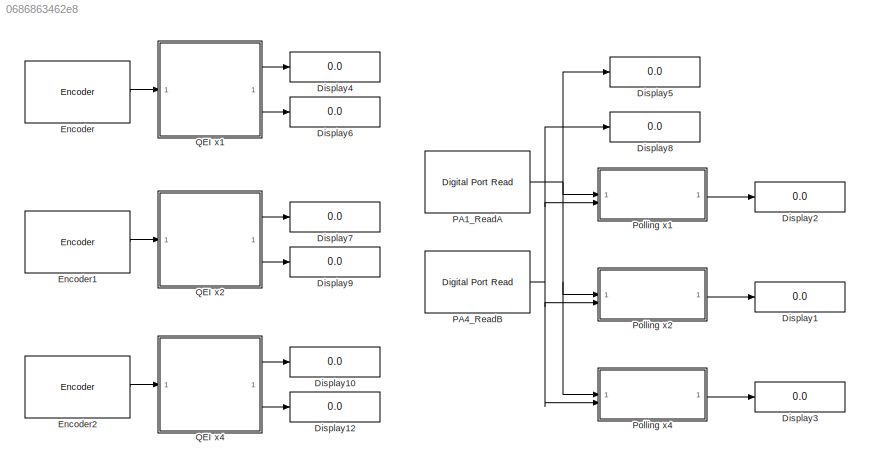
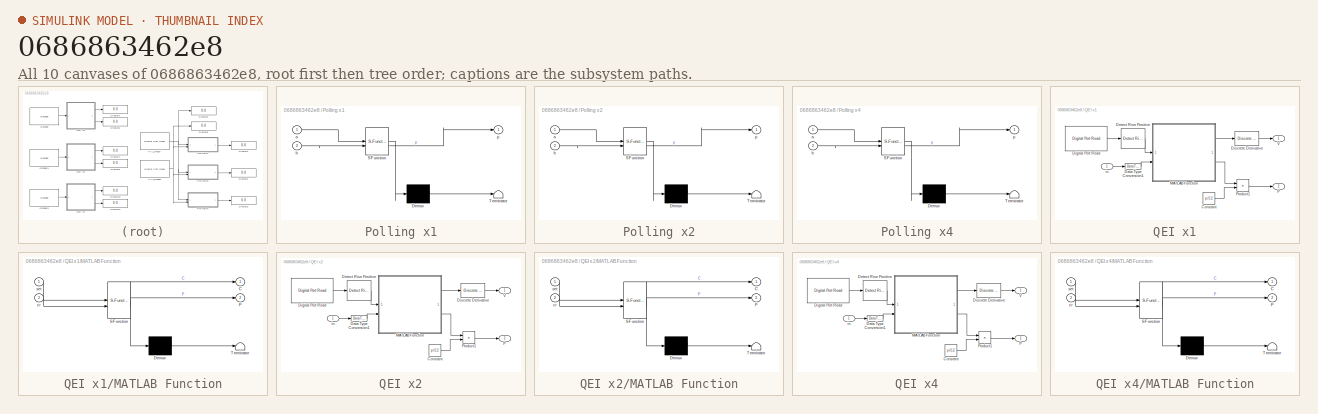
[diagram: thumbnail index - all 10 canvases of the model, root first then tree order]
MODEL slx_0686863462e8
KIND model
CONFIG AbsTol = auto
CONFIG EnableMultiTasking = on
CONFIG FixedStep = 0.01
CONFIG MaxStep = auto
CONFIG MinStep = auto
CONFIG RelTol = 1e-3
CONFIG SampleTimeConstraint = Unconstrained
CONFIG SolverName = FixedStepAuto
CONFIG StartTime = 0.0
CONFIG StopTime = inf
BLOCK [Display] Display1
  Decimation = 1
BLOCK [Display] Display10
  Decimation = 1
BLOCK [Display] Display12
  Decimation = 1
BLOCK [Display] Display2
  Decimation = 1
BLOCK [Display] Display3
  Decimation = 1
BLOCK [Display] Display4
  Decimation = 1
BLOCK [Display] Display5
  Decimation = 1
BLOCK [Display] Display6
  Decimation = 1
BLOCK [Display] Display7
  Decimation = 1
BLOCK [Display] Display8
  Decimation = 1
BLOCK [Display] Display9
  Decimation = 1
BLOCK [Reference] Encoder  REF=stm32g4xxblockslib/Encoder
  SourceBlock = stm32g4xxblockslib/Encoder
  SourceType = stm32cube.blocks.EncoderBlockForG4
BLOCK [Reference] Encoder1  REF=stm32g4xxblockslib/Encoder
  SourceBlock = stm32g4xxblockslib/Encoder
  SourceType = stm32cube.blocks.EncoderBlockForG4
BLOCK [Reference] Encoder2  REF=stm32g4xxblockslib/Encoder
  SourceBlock = stm32g4xxblockslib/Encoder
  SourceType = stm32cube.blocks.EncoderBlockForG4
BLOCK [Reference] PA1_ReadA  REF=stm32f4xxblockslib/Digital Port Read
  LibrarySourceBlock = stm32g4xxblockslib/Digital Port Read
  SourceBlock = stm32f4xxblockslib/Digital Port Read
  SourceType = stm32cube.blocks.DigitalPortRead
BLOCK [Reference] PA4_ReadB  REF=stm32f4xxblockslib/Digital Port Read
  LibrarySourceBlock = stm32g4xxblockslib/Digital Port Read
  SourceBlock = stm32f4xxblockslib/Digital Port Read
  SourceType = stm32cube.blocks.DigitalPortRead
BLOCK [SubSystem] Polling x1
  ErrorFcn = Stateflow.Translate.translate
  PermitHierarchicalResolution = ExplicitOnly
  SFBlockType = MATLAB Function
  TreatAsAtomicUnit = on
BLOCK [Demux] Polling x1/ Demux 
  Outputs = 1
BLOCK [S-Function] Polling x1/ SFunction 
  EnableBusSupport = on
  FunctionName = sf_sfun
  PortCounts = [2 2]
  SFcnIsStateOwnerBlock = off
  SFunctionDeploymentMode = off
  Tag = Stateflow S-Function 2
BLOCK [Terminator] Polling x1/ Terminator 
BLOCK [Inport] Polling x1/a
BLOCK [Inport] Polling x1/b
  Port = 2
BLOCK [Outport] Polling x1/p
BLOCK [SubSystem] Polling x2
  ErrorFcn = Stateflow.Translate.translate
  PermitHierarchicalResolution = ExplicitOnly
  SFBlockType = MATLAB Function
  TreatAsAtomicUnit = on
BLOCK [Demux] Polling x2/ Demux 
  Outputs = 1
BLOCK [S-Function] Polling x2/ SFunction 
  EnableBusSupport = on
  FunctionName = sf_sfun
  PortCounts = [2 2]
  SFcnIsStateOwnerBlock = off
  SFunctionDeploymentMode = off
  Tag = Stateflow S-Function 1
BLOCK [Terminator] Polling x2/ Terminator 
BLOCK [Inport] Polling x2/a
BLOCK [Inport] Polling x2/b
  Port = 2
BLOCK [Outport] Polling x2/p
BLOCK [SubSystem] Polling x4
  ErrorFcn = Stateflow.Translate.translate
  PermitHierarchicalResolution = ExplicitOnly
  SFBlockType = MATLAB Function
  TreatAsAtomicUnit = on
BLOCK [Demux] Polling x4/ Demux 
  Outputs = 1
BLOCK [S-Function] Polling x4/ SFunction 
  EnableBusSupport = on
  FunctionName = sf_sfun
  PortCounts = [2 2]
  SFcnIsStateOwnerBlock = off
  SFunctionDeploymentMode = off
  Tag = Stateflow S-Function 3
BLOCK [Terminator] Polling x4/ Terminator 
BLOCK [Inport] Polling x4/a
BLOCK [Inport] Polling x4/b
  Port = 2
BLOCK [Outport] Polling x4/p
BLOCK [SubSystem] QEI x1
BLOCK [Constant] QEI x1/Constant
  Value = pi/12
BLOCK [DataTypeConversion] QEI x1/Data Type Conversion1
  OutDataTypeStr = double
  RndMeth = Floor
  SaturateOnIntegerOverflow = off
BLOCK [Reference] QEI x1/Detect Rise Positive  REF=simulink/Logic and Bit
Operations/Detect Rise
Positive
  SourceBlock = simulink/Logic and Bit\nOperations/Detect Rise\nPositive
  SourceType = Detect Rise Positive
BLOCK [Reference] QEI x1/Digital Port Read  REF=stm32f4xxblockslib/Digital Port Read
  LibrarySourceBlock = stm32g4xxblockslib/Digital Port Read
  SourceBlock = stm32f4xxblockslib/Digital Port Read
  SourceType = stm32cube.blocks.DigitalPortRead
BLOCK [Reference] QEI x1/Discrete Derivative  REF=simulink/Discrete/Discrete Derivative
  SourceBlock = simulink/Discrete/Discrete Derivative
  SourceType = Discrete Derivative
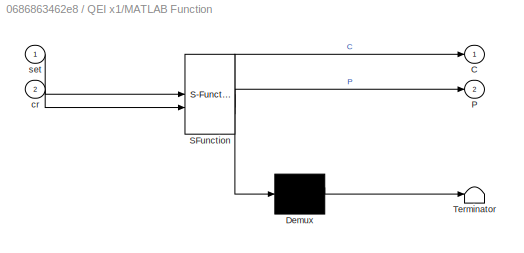
BLOCK [SubSystem] QEI x1/MATLAB Function
  ErrorFcn = Stateflow.Translate.translate
  PermitHierarchicalResolution = ExplicitOnly
  SFBlockType = MATLAB Function
  TreatAsAtomicUnit = on
BLOCK [Demux] QEI x1/MATLAB Function/ Demux 
  Outputs = 1
BLOCK [S-Function] QEI x1/MATLAB Function/ SFunction 
  EnableBusSupport = on
  FunctionName = sf_sfun
  PortCounts = [2 3]
  SFcnIsStateOwnerBlock = off
  SFunctionDeploymentMode = off
  Tag = Stateflow S-Function 4
BLOCK [Terminator] QEI x1/MATLAB Function/ Terminator 
BLOCK [Outport] QEI x1/MATLAB Function/C
BLOCK [Outport] QEI x1/MATLAB Function/P
  Port = 2
BLOCK [Inport] QEI x1/MATLAB Function/cr
  Port = 2
BLOCK [Inport] QEI x1/MATLAB Function/set
BLOCK [Outport] QEI x1/P
  Port = 2
BLOCK [Product] QEI x1/Product1
BLOCK [Outport] QEI x1/V
BLOCK [Inport] QEI x1/in
BLOCK [SubSystem] QEI x2
BLOCK [Constant] QEI x2/Constant
  Value = pi/12
BLOCK [DataTypeConversion] QEI x2/Data Type Conversion1
  OutDataTypeStr = double
  RndMeth = Floor
  SaturateOnIntegerOverflow = off
BLOCK [Reference] QEI x2/Detect Rise Positive  REF=simulink/Logic and Bit
Operations/Detect Rise
Positive
  SourceBlock = simulink/Logic and Bit\nOperations/Detect Rise\nPositive
  SourceType = Detect Rise Positive
BLOCK [Reference] QEI x2/Digital Port Read  REF=stm32f4xxblockslib/Digital Port Read
  SourceBlock = stm32f4xxblockslib/Digital Port Read
  SourceType = stm32cube.blocks.DigitalPortRead
BLOCK [Reference] QEI x2/Discrete Derivative  REF=simulink/Discrete/Discrete Derivative
  SourceBlock = simulink/Discrete/Discrete Derivative
  SourceType = Discrete Derivative
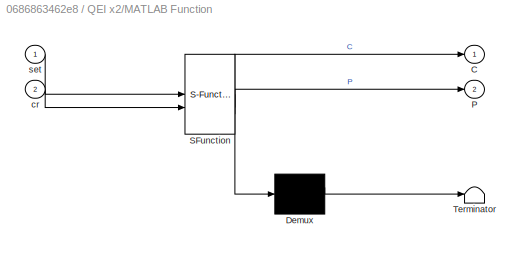
BLOCK [SubSystem] QEI x2/MATLAB Function
  ErrorFcn = Stateflow.Translate.translate
  PermitHierarchicalResolution = ExplicitOnly
  SFBlockType = MATLAB Function
  TreatAsAtomicUnit = on
BLOCK [Demux] QEI x2/MATLAB Function/ Demux 
  Outputs = 1
BLOCK [S-Function] QEI x2/MATLAB Function/ SFunction 
  EnableBusSupport = on
  FunctionName = sf_sfun
  PortCounts = [2 3]
  SFcnIsStateOwnerBlock = off
  SFunctionDeploymentMode = off
  Tag = Stateflow S-Function 5
BLOCK [Terminator] QEI x2/MATLAB Function/ Terminator 
BLOCK [Outport] QEI x2/MATLAB Function/C
BLOCK [Outport] QEI x2/MATLAB Function/P
  Port = 2
BLOCK [Inport] QEI x2/MATLAB Function/cr
  Port = 2
BLOCK [Inport] QEI x2/MATLAB Function/set
BLOCK [Outport] QEI x2/P
  Port = 2
BLOCK [Product] QEI x2/Product1
BLOCK [Outport] QEI x2/V
BLOCK [Inport] QEI x2/in
BLOCK [SubSystem] QEI x4
BLOCK [Constant] QEI x4/Constant
  Value = pi/12
BLOCK [DataTypeConversion] QEI x4/Data Type Conversion1
  OutDataTypeStr = double
  RndMeth = Floor
  SaturateOnIntegerOverflow = off
BLOCK [Reference] QEI x4/Detect Rise Positive  REF=simulink/Logic and Bit
Operations/Detect Rise
Positive
  SourceBlock = simulink/Logic and Bit\nOperations/Detect Rise\nPositive
  SourceType = Detect Rise Positive
BLOCK [Reference] QEI x4/Digital Port Read  REF=stm32f4xxblockslib/Digital Port Read
  SourceBlock = stm32f4xxblockslib/Digital Port Read
  SourceType = stm32cube.blocks.DigitalPortRead
BLOCK [Reference] QEI x4/Discrete Derivative  REF=simulink/Discrete/Discrete Derivative
  SourceBlock = simulink/Discrete/Discrete Derivative
  SourceType = Discrete Derivative
BLOCK [SubSystem] QEI x4/MATLAB Function
  ErrorFcn = Stateflow.Translate.translate
  PermitHierarchicalResolution = ExplicitOnly
  SFBlockType = MATLAB Function
  TreatAsAtomicUnit = on
BLOCK [Demux] QEI x4/MATLAB Function/ Demux 
  Outputs = 1
BLOCK [S-Function] QEI x4/MATLAB Function/ SFunction 
  EnableBusSupport = on
  FunctionName = sf_sfun
  PortCounts = [2 3]
  SFcnIsStateOwnerBlock = off
  SFunctionDeploymentMode = off
  Tag = Stateflow S-Function 6
BLOCK [Terminator] QEI x4/MATLAB Function/ Terminator 
BLOCK [Outport] QEI x4/MATLAB Function/C
BLOCK [Outport] QEI x4/MATLAB Function/P
  Port = 2
BLOCK [Inport] QEI x4/MATLAB Function/cr
  Port = 2
BLOCK [Inport] QEI x4/MATLAB Function/set
BLOCK [Outport] QEI x4/P
  Port = 2
BLOCK [Product] QEI x4/Product1
BLOCK [Outport] QEI x4/V
BLOCK [Inport] QEI x4/in
LINE Encoder1:1 -> QEI x2:1
LINE Encoder2:1 -> QEI x4:1
LINE Encoder:1 -> QEI x1:1
NET PA1_ReadA:1 -> Display5:1, Polling x1:1, Polling x2:1, Polling x4:1
NET PA4_ReadB:1 -> Display8:1, Polling x1:2, Polling x2:2, Polling x4:2
LINE Polling x1:1 -> Display2:1
LINE Polling x2:1 -> Display1:1
LINE Polling x4:1 -> Display3:1
LINE QEI x1/Constant:1 -> QEI x1/Product1:2
LINE QEI x1/Data Type Conversion1:1 -> QEI x1/MATLAB Function:2
LINE QEI x1/Detect Rise Positive:1 -> QEI x1/MATLAB Function:1
LINE QEI x1/Digital Port Read:1 -> QEI x1/Detect Rise Positive:1
LINE QEI x1/Discrete Derivative:1 -> QEI x1/V:1
LINE QEI x1/MATLAB Function:1 -> QEI x1/Discrete Derivative:1
LINE QEI x1/MATLAB Function:2 -> QEI x1/Product1:1
LINE QEI x1/Product1:1 -> QEI x1/P:1
LINE QEI x1/in:1 -> QEI x1/Data Type Conversion1:1
LINE QEI x1:1 -> Display4:1
LINE QEI x1:2 -> Display6:1
LINE QEI x2/Constant:1 -> QEI x2/Product1:2
LINE QEI x2/Data Type Conversion1:1 -> QEI x2/MATLAB Function:2
LINE QEI x2/Detect Rise Positive:1 -> QEI x2/MATLAB Function:1
LINE QEI x2/Digital Port Read:1 -> QEI x2/Detect Rise Positive:1
LINE QEI x2/Discrete Derivative:1 -> QEI x2/V:1
LINE QEI x2/MATLAB Function:1 -> QEI x2/Discrete Derivative:1
LINE QEI x2/MATLAB Function:2 -> QEI x2/Product1:1
LINE QEI x2/Product1:1 -> QEI x2/P:1
LINE QEI x2/in:1 -> QEI x2/Data Type Conversion1:1
LINE QEI x2:1 -> Display7:1
LINE QEI x2:2 -> Display9:1
LINE QEI x4/Constant:1 -> QEI x4/Product1:2
LINE QEI x4/Data Type Conversion1:1 -> QEI x4/MATLAB Function:2
LINE QEI x4/Detect Rise Positive:1 -> QEI x4/MATLAB Function:1
LINE QEI x4/Digital Port Read:1 -> QEI x4/Detect Rise Positive:1
LINE QEI x4/Discrete Derivative:1 -> QEI x4/V:1
LINE QEI x4/MATLAB Function:1 -> QEI x4/Discrete Derivative:1
LINE QEI x4/MATLAB Function:2 -> QEI x4/Product1:1
LINE QEI x4/Product1:1 -> QEI x4/P:1
LINE QEI x4/in:1 -> QEI x4/Data Type Conversion1:1
LINE QEI x4:1 -> Display10:1
LINE QEI x4:2 -> Display12:1
note: NET lines group one-source signal fan-out (src -> all destinations, sorted); 1:1 wires keep LINE
CHART Polling x2 states=1 transitions=1
  STATE_LABEL 'eML_blk_kernel()'
  STATE_LABEL 'SCRIPT:\nfunction p = fcn(a,b)\n    persistent pos;\n    persistent trig;\n    if isempty(trig)\n        trig = 1;\n        pos = 0;\n    end\n    if a-b == -1 && trig\n        pos = pos + 1;\n        trig = 2;\n    elseif a-b == 1 && trig\n        pos = pos -1;\n        trig = 2;\n    end\n\n    if a == 0 && b == 0 \n        trig = 0;\n    end\n\n    if a-b == 1 && trig == 0\n        pos = pos + 1;\n        trig = -1;...<+151ch>'
CHART Polling x1 states=1 transitions=1
  STATE_LABEL 'eML_blk_kernel()'
  STATE_LABEL 'SCRIPT:\nfunction p = fcn(a,b)\n    persistent pos;\n    persistent trig;\n    if isempty(trig)\n        trig = 1;\n        pos = 0;\n    end\n    if a-b == -1 && trig\n        pos = pos + 1;\n        trig = 0;\n    elseif a-b == 1 && trig\n        pos = pos -1;\n        trig = 0;\n    end\n\n    if a == 1 && b == 1\n        trig = 1;\n    end\n    p = pos;\nend\n'
CHART Polling x4 states=1 transitions=1
  STATE_LABEL 'eML_blk_kernel()'
  STATE_LABEL 'SCRIPT:\nfunction p = fcn(a,b)\n    persistent pos;\n    persistent trigA;\n    persistent trigB;\n    if isempty(trigA)\n        trigA = 1;\n        trigB = 1;\n        pos = 0;\n    end\n    if a-b == -1 && trigA\n        pos = pos + 1;\n        trigA = 2;\n    elseif a-b == 1 && trigA\n        pos = pos -1;\n        trigA = 2;\n    end\n\n\n    if a-b == -1 && trigA == 0\n        pos = pos + 1;\n        trigA = -1;...<+553ch>'
CHART QEI x1/MATLAB Function states=1 transitions=1
  STATE_LABEL 'eML_blk_kernel()'
  STATE_LABEL 'SCRIPT:\nfunction [C,P] = fcn(set,cr)\n    persistent pr;\n    persistent hom;\n    persistent ps;\n    max = 2048;\n\n    if isempty(pr)\n        pr = cr;\n        hom = 0;\n        ps = 0;\n    end\n\n    delta = cr - pr;\n\n    if delta <= -1*(max/2)\n        delta = delta + max + 1;\n    elseif delta >= max/2\n        delta = delta -max - 1;\n    end\n\n    if set\n        hom = ps;\n    end\n    ps = ps + delta;\n   ...<+43ch>'  <repeated x3 — deduplicated; at blocks: MATLAB Function>
CHART QEI x2/MATLAB Function states=1 transitions=1
  STATE_LABEL 'eML_blk_kernel()'
CHART QEI x4/MATLAB Function states=1 transitions=1
  STATE_LABEL 'eML_blk_kernel()'
CHART  states=0 transitions=0
CHART  states=0 transitions=0
CHART  states=0 transitions=0
CHART  states=0 transitions=0
CHART  states=0 transitions=0
CHART  states=0 transitions=0
